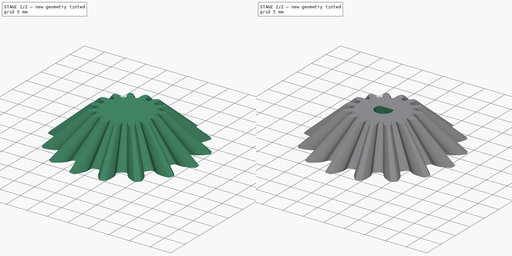
[diagram: build sequence overview — one tinted view per stage of 2, left to right]
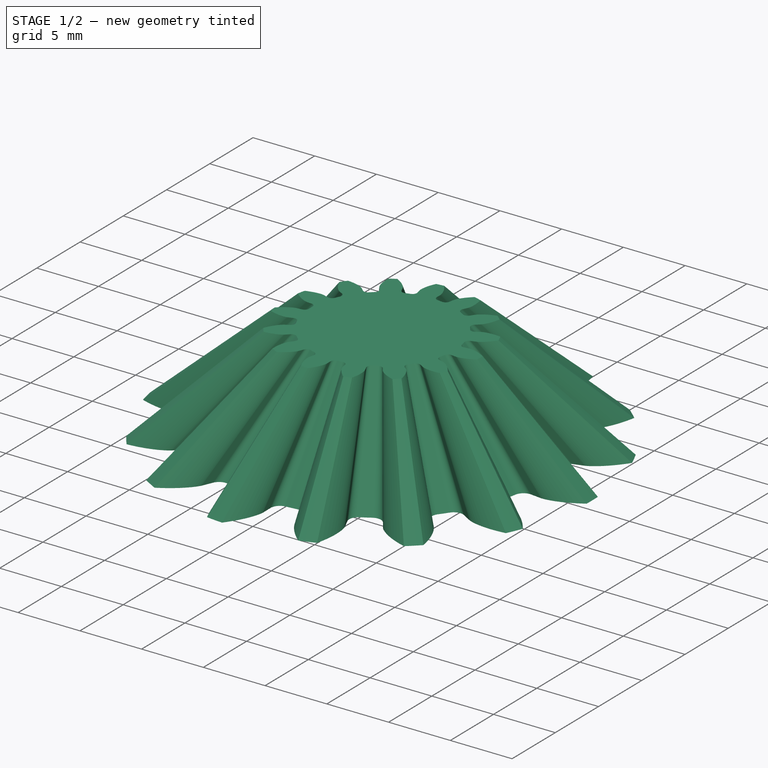
[diagram: stage 1 of 2 — iso view after this stage's code; geometry added in this stage tinted green]
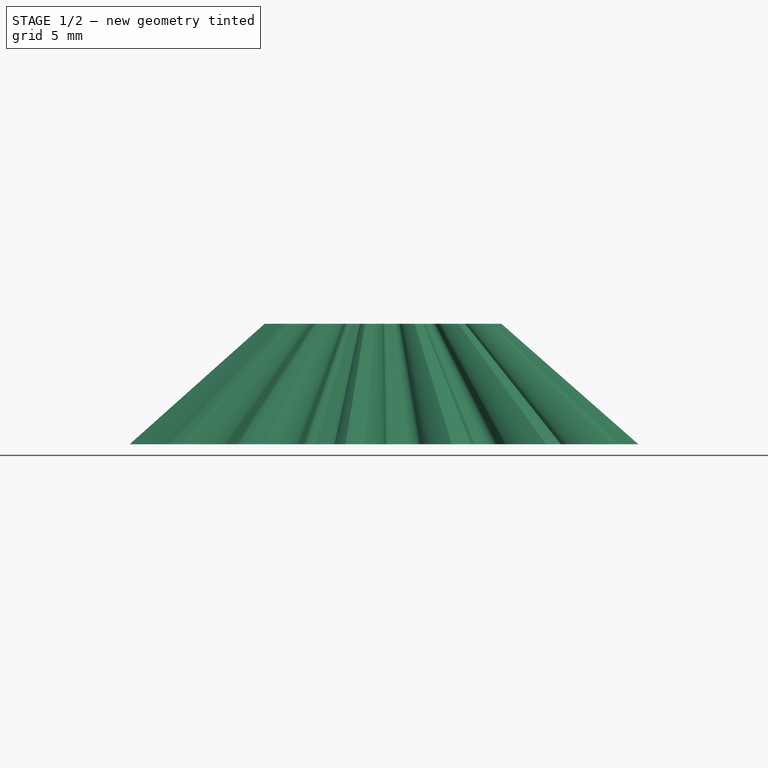
[diagram: stage 1 of 2 — front view after this stage's code; geometry added in this stage tinted green]
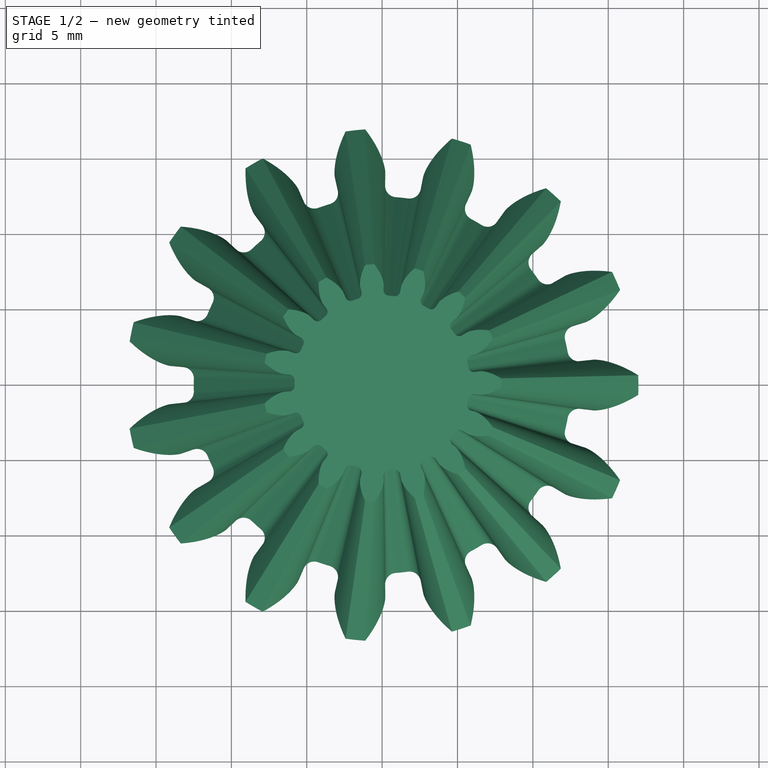
[diagram: stage 1 of 2 — top view after this stage's code; geometry added in this stage tinted green]
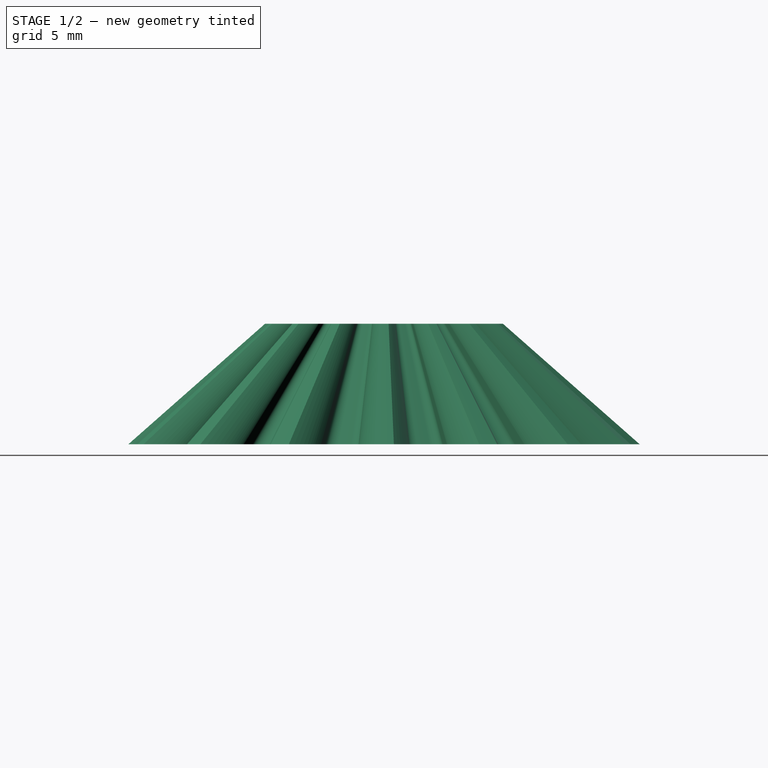
[diagram: stage 1 of 2 — right view after this stage's code; geometry added in this stage tinted green]
FCSTD DOCUMENT  (FreeCAD 0.21R33668 +26 (Git))
Label: dmc_bevel_gear
License: All rights reserved
LicenseURL: http://en.wikipedia.org/wiki/All_rights_reserved
objects: Part::Part2DObjectPython×2, Spreadsheet::Sheet×1, Part::Loft×1, PartDesign::FeatureBase×1, Sketcher::SketchObject×1, PartDesign::Pocket×1, PartDesign::Body×1
note: 8 computed .brp shape members not serialized (recipe doc carries the construction recipe); baked Part::Feature solids carry a one-line shape summary decoded from their .brp

FEATURE [Part::Part2DObjectPython] InvoluteGear  # Draft 2D object (typed FeaturePython)
  AddendumCoefficient = 1
  DedendumCoefficient = 1.25
  ExternalGear = true
  HighPrecision = true
  Modules = 2
  NumberOfTeeth = 15
  PressureAngle = 20
  ProfileShiftCoefficient = 0
  RootFilletCoefficient = 0.38
FEATURE [Spreadsheet::Sheet] Spreadsheet
  cells = A1='gear_bottom_diameter; B1(g_bottom_d)==30 mm; D1='constant; A2='gear_top_diameter; B2(g_top_d)==14 mm; D2='shaft_diameter; E2(g_shaft_diam)==1.9 mm; A3='gear_height; B3(g_height)==(B1 - B2) / 2; D3='dcm_shaft_diameter; E3(dcm_shaft_d)==4 mm; A4='gear_shaft_tolerance; B4(g_tol)==0.2 mm; D4='dcm_shaft_toflat; E4(dcm_shaft_tf)==3.1 mm; A5='dmc_shaft_tolerance; B5(dcm_tol)==0.1 mm
FEATURE [Part::Part2DObjectPython] InvoluteGear001  # Draft 2D object (typed FeaturePython)
  AddendumCoefficient = 1
  DedendumCoefficient = 1.25
  ExternalGear = true
  HighPrecision = true
  Modules = 0.93
  NumberOfTeeth = 15
  Placement = pos=(0,0,8) rot=(0,0,1;0rad)
  PressureAngle = 20
  ProfileShiftCoefficient = 0
  RootFilletCoefficient = 0.38
  expr: .Placement.Base.z = Spreadsheet.g_height
FEATURE [Part::Loft] Loft
  Closed = false
  MaxDegree = 5
  Ruled = false
  Sections = -> [InvoluteGear,InvoluteGear001]
  Solid = true
FEATURE [PartDesign::FeatureBase] BaseFeature
  BaseFeature = -> Loft
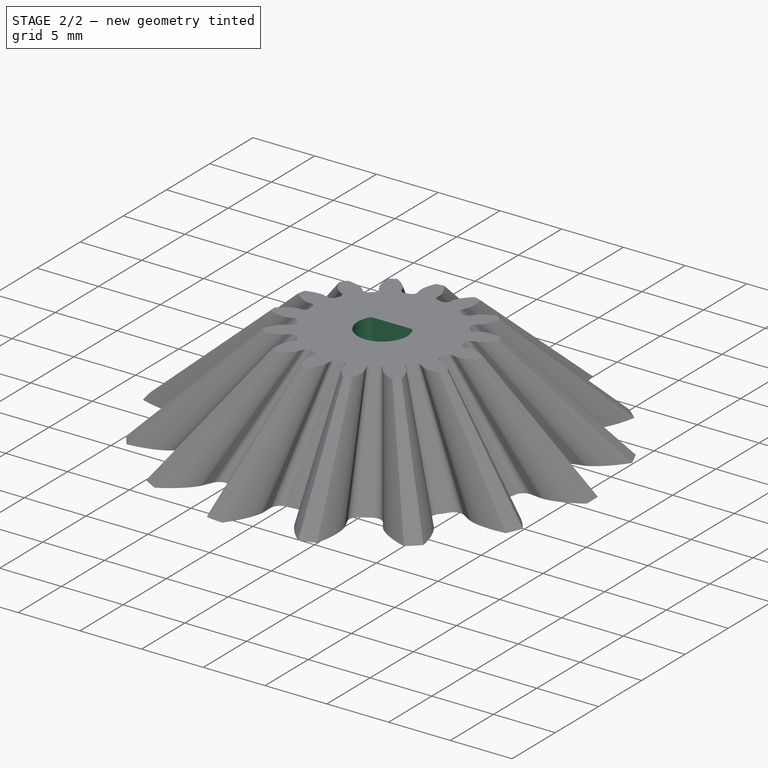
[diagram: stage 2 of 2 — iso view after this stage's code; geometry added in this stage tinted green]
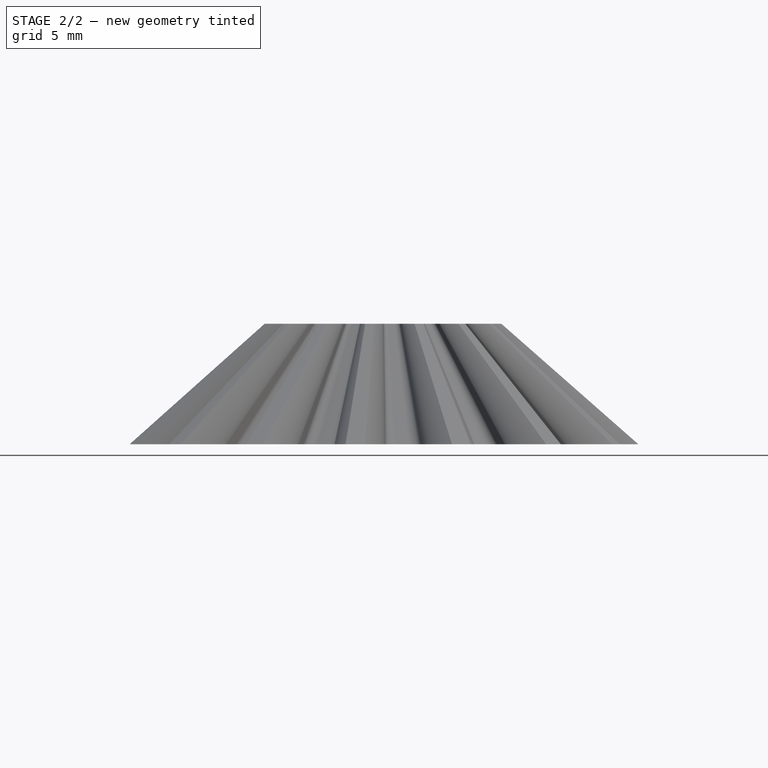
[diagram: stage 2 of 2 — front view after this stage's code; geometry added in this stage tinted green]
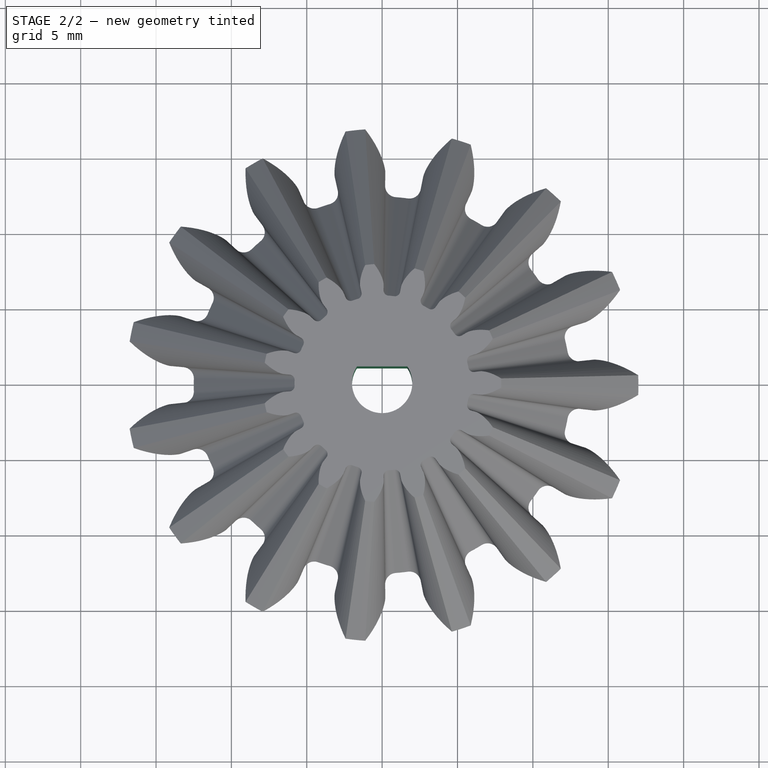
[diagram: stage 2 of 2 — top view after this stage's code; geometry added in this stage tinted green]
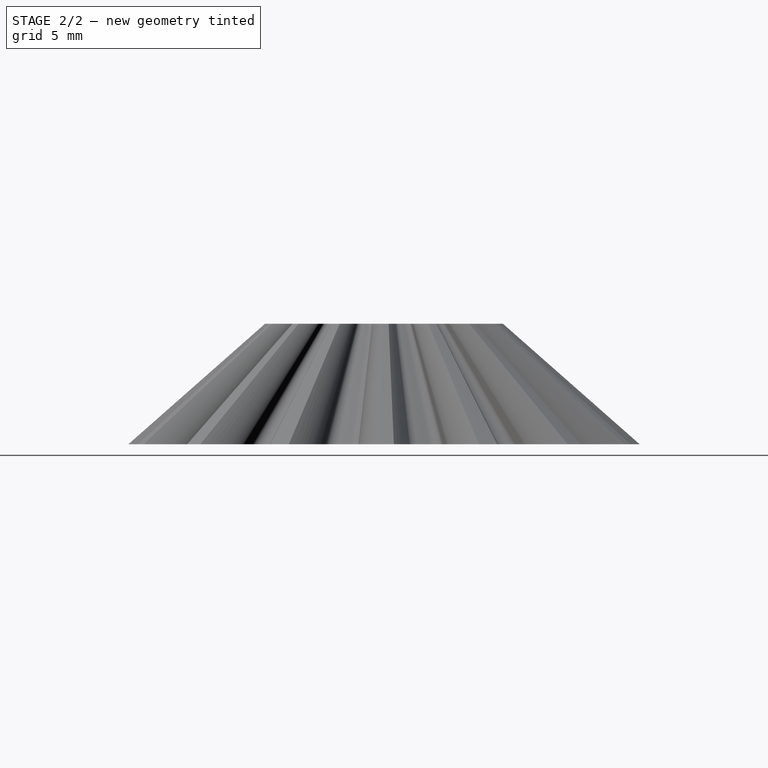
[diagram: stage 2 of 2 — right view after this stage's code; geometry added in this stage tinted green]
FEATURE [Sketcher::SketchObject] Sketch
  FullyConstrained = true
  MapMode = 5
  Placement = pos=(0,0,8) rot=(0,0,1;0rad)
  Support = -> [BaseFeature]
  expr: Constraints[2] = Spreadsheet.dcm_shaft_tf
  expr: Constraints[4] = Spreadsheet.dcm_shaft_d / 2
  expr: Constraints[5] = Spreadsheet.dcm_shaft_d
  sketch-geometry (5):
    g0: GeomPoint X=0 Y=1.1 Z=0
    g1: GeomPoint X=0 Y=-2 Z=0
    g2: GeomPoint X=0 Y=2 Z=0
    g3: ArcOfCircle CenterX=0 CenterY=0 CenterZ=0 NormalX=0 NormalY=0 NormalZ=1 AngleXU=0 Radius=2 StartAngle=2.55923 EndAngle=6.86555
    g4: LineSegment StartX=-1.67033 StartY=1.1 StartZ=0 EndX=1.67033 EndY=1.1 EndZ=0
  constraints (12):
    c: PointOnObject(g0,g-2)
    c: PointOnObject(g1,g-2)
    c: DistanceY(g1,g0) = 3.1
    c: PointOnObject(g2,g-2)
    c: DistanceY(g-1,g2) = 2
    c: DistanceY(g1,g2) = 4
    c: PointOnObject(g1,g3)
    c: DistanceY(g3,g3) = 0
    c: DistanceY(g3,g0) = 0
    c: Coincident(g4,g3)
    c: Coincident(g4,g3)
    c: Coincident(g3,g-1)
FEATURE [PartDesign::Pocket] Pocket
  BaseFeature = -> BaseFeature
  Direction = (0,0,-1)
  Length = 8
  Length2 = 5
  Profile = -> Sketch
  ReferenceAxis = -> Sketch [N_Axis]
  Type = 0
  expr: Length = Spreadsheet.g_height
FEATURE [PartDesign::Body] Body
  BaseFeature = -> Loft
  Group = -> [BaseFeature,InvoluteGear001,InvoluteGear,Sketch,Pocket]
  Origin = -> Origin
  Tip = -> Pocket
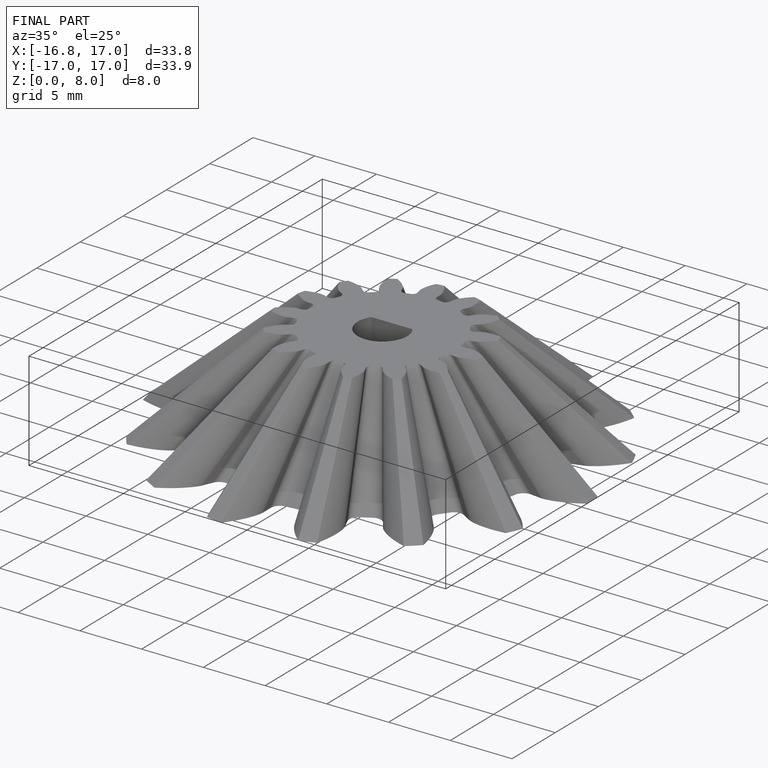
[diagram: finished part — iso view with bounding-box wireframe]
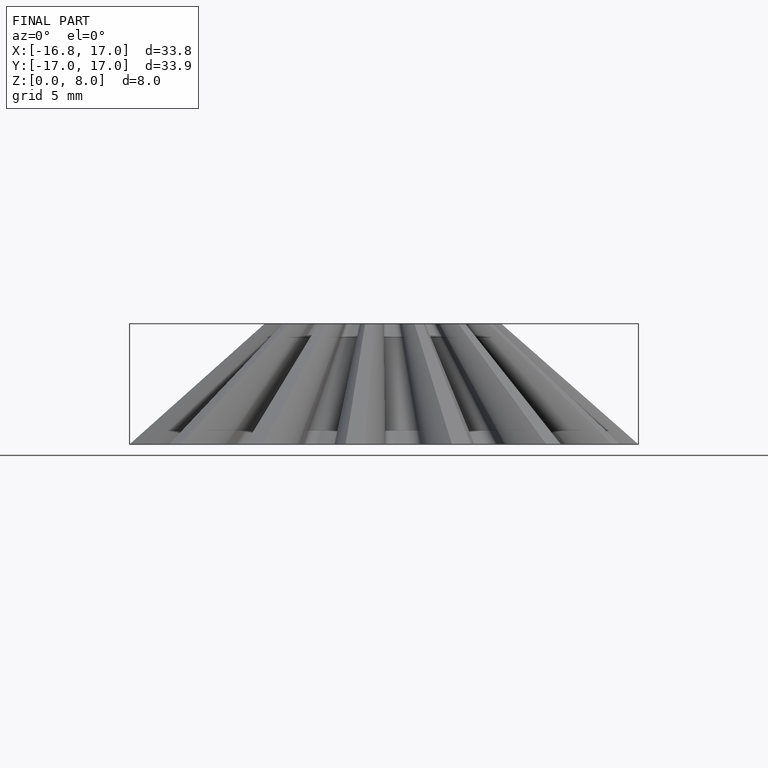
[diagram: finished part — front view with bounding-box wireframe]
